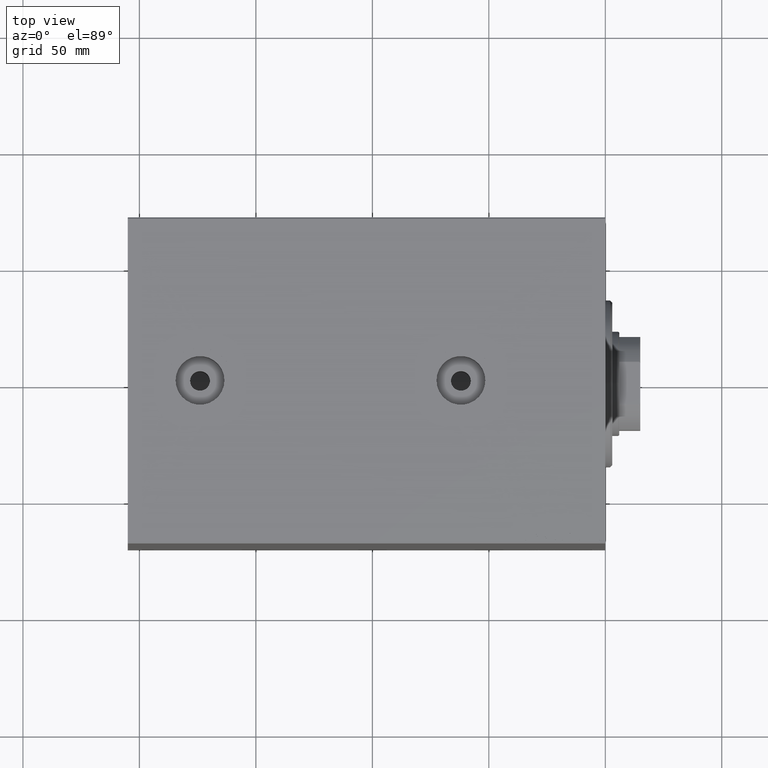
[diagram: clean part render]
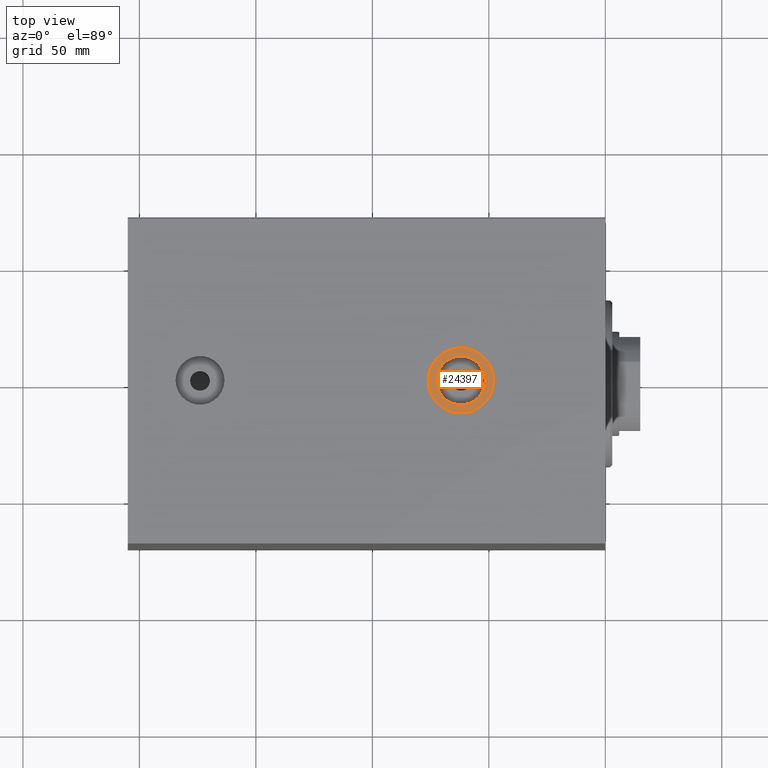
[diagram: same view with one face highlighted and labeled with its STEP entity id]
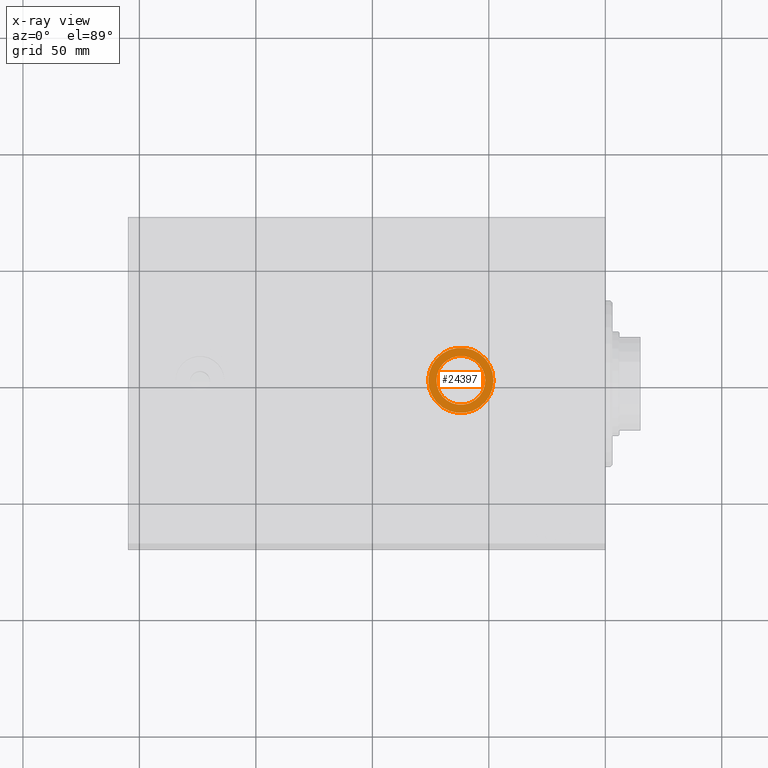
[diagram: x-ray of the same camera — body ghosted, the highlighted face saturated]
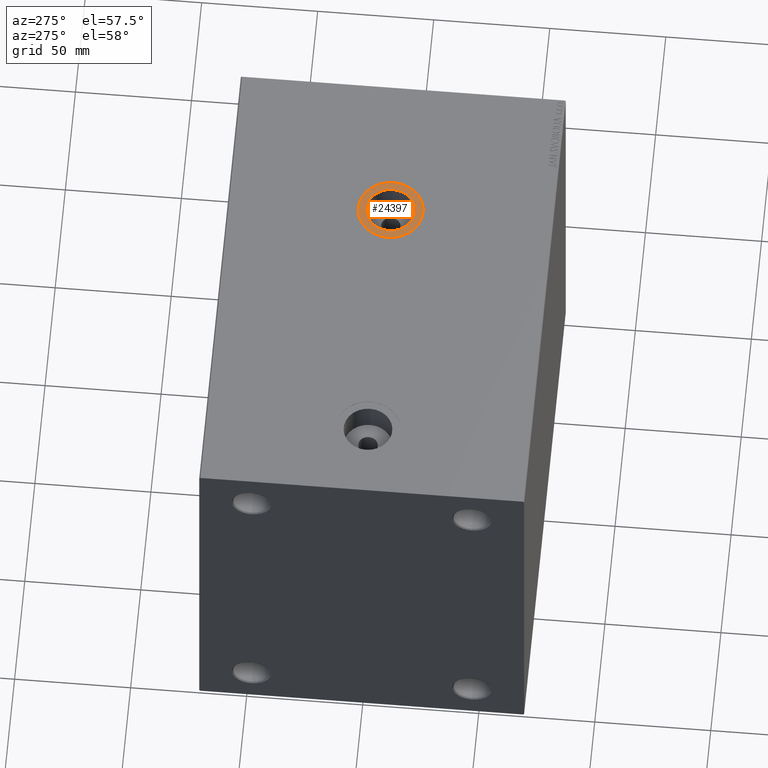
[diagram: same view with one face highlighted and labeled with its STEP entity id]
A machine part, top view. The second image highlights one B-rep face of the part: STEP entity #24397.
The next image is the same camera in x-ray: the body ghosted, the highlighted face saturated — about 0% of this face is hidden behind the body in this view.
A second angle (auxiliary view) of the same face is appended — the face is thin or edge-on in the first view.
In plain terms, the highlighted planar face has unit normal (-0, 0, 1).
Its self-contained STEP definition (entity closure, byte-faithful):
#2347 = DIRECTION ( 'NONE',  ( -1.000000000000000000, 0.000000000000000000, -0.000000000000000000 ) ) ;
#2829 = AXIS2_PLACEMENT_3D ( 'NONE', #34557, #6286, #20985 ) ;
#4040 = AXIS2_PLACEMENT_3D ( 'NONE', #5842, #12884, #2347 ) ;
#5611 = PLANE ( 'NONE',  #4040 ) ;
#5842 = CARTESIAN_POINT ( 'NONE',  ( 0.000000000000000000, 0.000000000000000000, -84.90000000000001990 ) ) ;
#6286 = DIRECTION ( 'NONE',  ( 0.000000000000000000, 0.000000000000000000, -1.000000000000000000 ) ) ;
#6492 = VERTEX_POINT ( 'NONE', #14750 ) ;
#8066 = EDGE_LOOP ( 'NONE', ( #38349, #10001 ) ) ;
#8710 = ORIENTED_EDGE ( 'NONE', *, *, #34905, .T. ) ;
#10001 = ORIENTED_EDGE ( 'NONE', *, *, #23397, .F. ) ;
#11537 = CIRCLE ( 'NONE', #41384, 13.99999999999999822 ) ;
#12884 = DIRECTION ( 'NONE',  ( 0.000000000000000000, 0.000000000000000000, -1.000000000000000000 ) ) ;
#12997 = AXIS2_PLACEMENT_3D ( 'NONE', #29226, #42586, #18458 ) ;
#14628 = EDGE_CURVE ( 'NONE', #21846, #42399, #16336, .T. ) ;
#14750 = CARTESIAN_POINT ( 'NONE',  ( 48.00000000000000000, -7.809270427870432818E-15, -84.90000000000001990 ) ) ;
#16336 = CIRCLE ( 'NONE', #37987, 10.48000000000000398 ) ;
#16365 = CARTESIAN_POINT ( 'NONE',  ( 62.00000000000000000, -7.809270427870432818E-15, -84.90000000000001990 ) ) ;
#18458 = DIRECTION ( 'NONE',  ( -1.000000000000000000, 0.000000000000000000, 0.000000000000000000 ) ) ;
#19209 = CIRCLE ( 'NONE', #2829, 13.99999999999999822 ) ;
#20404 = EDGE_CURVE ( 'NONE', #6492, #42908, #11537, .T. ) ;
#20985 = DIRECTION ( 'NONE',  ( -1.000000000000000000, 0.000000000000000000, 0.000000000000000000 ) ) ;
#21846 = VERTEX_POINT ( 'NONE', #31222 ) ;
#23397 = EDGE_CURVE ( 'NONE', #42399, #21846, #24868, .T. ) ;
#24246 = DIRECTION ( 'NONE',  ( -1.000000000000000000, 0.000000000000000000, 0.000000000000000000 ) ) ;
#24397 = ADVANCED_FACE ( 'NONE', ( #37626, #31068 ), #5611, .T. ) ;
#24868 = CIRCLE ( 'NONE', #12997, 10.48000000000000398 ) ;
#25916 = DIRECTION ( 'NONE',  ( 0.000000000000000000, 0.000000000000000000, -1.000000000000000000 ) ) ;
#28246 = CARTESIAN_POINT ( 'NONE',  ( 76.00000000000000000, -6.094764909064137588E-15, -84.90000000000001990 ) ) ;
#29226 = CARTESIAN_POINT ( 'NONE',  ( 62.00000000000000000, -7.809270427870432818E-15, -84.90000000000001990 ) ) ;
#31068 = FACE_OUTER_BOUND ( 'NONE', #31831, .T. ) ;
#31222 = CARTESIAN_POINT ( 'NONE',  ( 51.51999999999999602, -7.809270427870432818E-15, -84.90000000000001990 ) ) ;
#31831 = EDGE_LOOP ( 'NONE', ( #41045, #8710 ) ) ;
#34557 = CARTESIAN_POINT ( 'NONE',  ( 62.00000000000000000, -7.809270427870432818E-15, -84.90000000000001990 ) ) ;
#34905 = EDGE_CURVE ( 'NONE', #42908, #6492, #19209, .T. ) ;
#37626 = FACE_BOUND ( 'NONE', #8066, .T. ) ;
#37860 = DIRECTION ( 'NONE',  ( 0.000000000000000000, 0.000000000000000000, -1.000000000000000000 ) ) ;
#37987 = AXIS2_PLACEMENT_3D ( 'NONE', #43704, #25916, #24246 ) ;
#38349 = ORIENTED_EDGE ( 'NONE', *, *, #14628, .F. ) ;
#41045 = ORIENTED_EDGE ( 'NONE', *, *, #20404, .T. ) ;
#41384 = AXIS2_PLACEMENT_3D ( 'NONE', #16365, #37860, #44425 ) ;
#42399 = VERTEX_POINT ( 'NONE', #45431 ) ;
#42586 = DIRECTION ( 'NONE',  ( 0.000000000000000000, 0.000000000000000000, -1.000000000000000000 ) ) ;
#42908 = VERTEX_POINT ( 'NONE', #28246 ) ;
#43704 = CARTESIAN_POINT ( 'NONE',  ( 62.00000000000000000, -7.809270427870432818E-15, -84.90000000000001990 ) ) ;
#44425 = DIRECTION ( 'NONE',  ( -1.000000000000000000, 0.000000000000000000, 0.000000000000000000 ) ) ;
#45431 = CARTESIAN_POINT ( 'NONE',  ( 72.48000000000000398, -6.525840582364006541E-15, -84.90000000000001990 ) ) ;